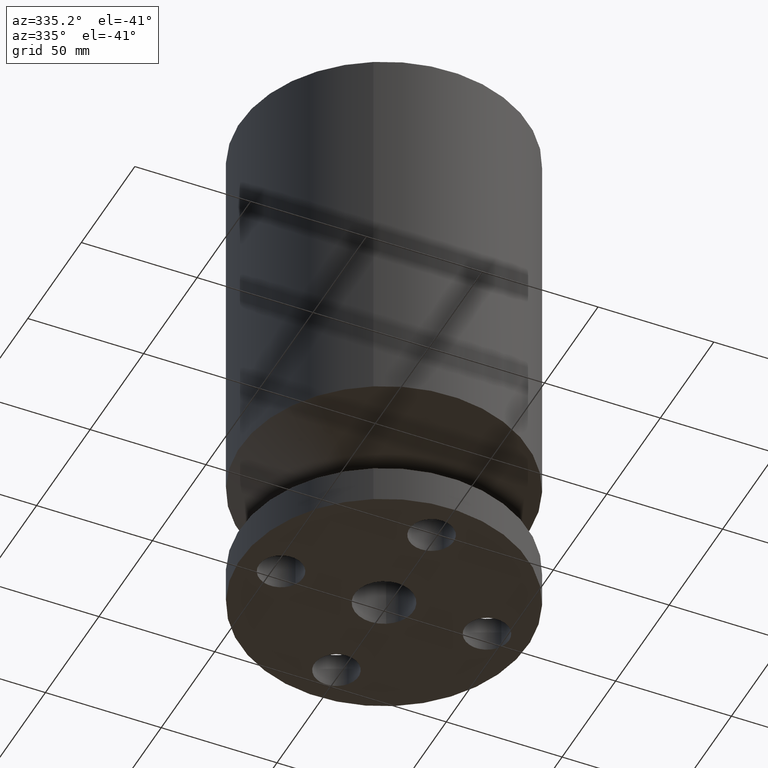
[diagram: clean part render]
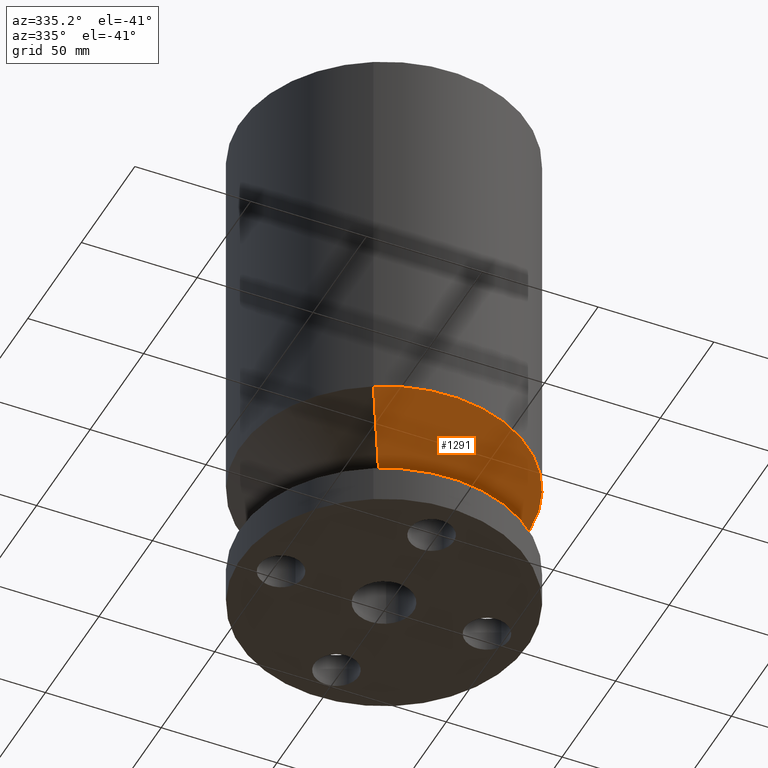
[diagram: same view with one face highlighted and labeled with its STEP entity id]
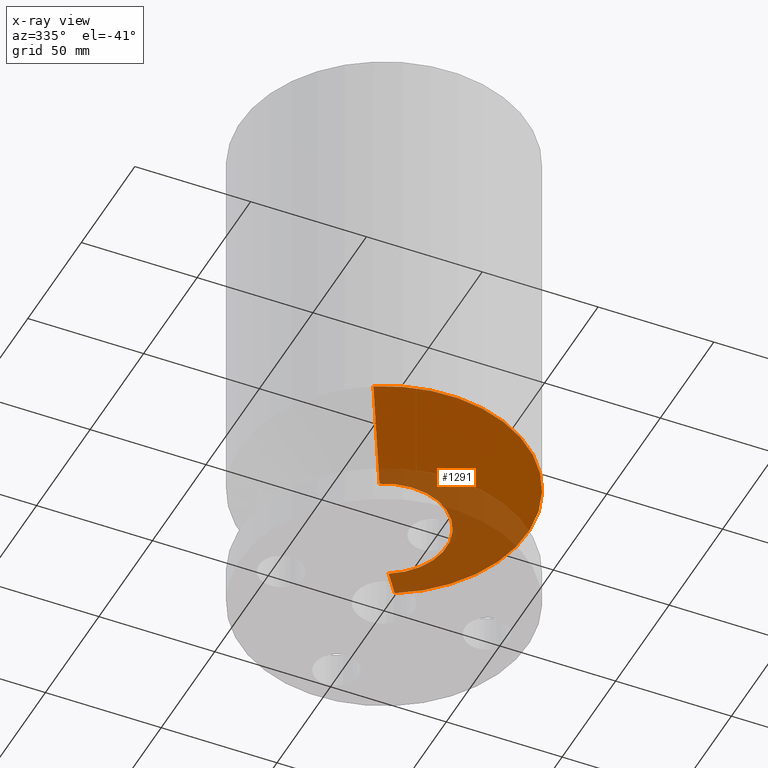
[diagram: x-ray of the same camera — body ghosted, the highlighted face saturated]
A machine part, auxiliary view. The second image highlights one B-rep face of the part: STEP entity #1291.
The next image is the same camera in x-ray: the body ghosted, the highlighted face saturated — about 38% of this face is hidden behind the body in this view.
In plain terms, the highlighted conical surface has half-angle 60 deg.
Its self-contained STEP definition (entity closure, byte-faithful):
#719=AXIS2_PLACEMENT_3D('Circle Axis2P3D',#717,#718,$) ;
#1264=AXIS2_PLACEMENT_3D('Cone Axis2P3D',#1261,#1262,#1263) ;
#1275=AXIS2_PLACEMENT_3D('Circle Axis2P3D',#1273,#1274,$) ;
#714=CARTESIAN_POINT('Vertex',(0.508191070922,0.930237515608,1.50750000001)) ;
#717=CARTESIAN_POINT('Axis2P3D Location',(0.,0.,1.50750000001)) ;
#721=CARTESIAN_POINT('Vertex',(-0.508191070922,-0.930237515608,1.50750000001)) ;
#1261=CARTESIAN_POINT('Axis2P3D Location',(0.,0.,1.50750000001)) ;
#1266=CARTESIAN_POINT('Line Origine',(0.838994692561,1.53576948331,1.90587168575)) ;
#1270=CARTESIAN_POINT('Vertex',(1.1697983142,2.14130145102,2.30424337149)) ;
#1273=CARTESIAN_POINT('Axis2P3D Location',(0.,0.,2.30424337149)) ;
#1277=CARTESIAN_POINT('Vertex',(-1.1697983142,-2.14130145102,2.30424337149)) ;
#1280=CARTESIAN_POINT('Line Origine',(-0.838994692561,-1.53576948331,1.90587168575)) ;
#718=DIRECTION('Axis2P3D Direction',(0.,0.,-0.0393700787402)) ;
#1262=DIRECTION('Axis2P3D Direction',(-0.,-0.,0.0393700787402)) ;
#1263=DIRECTION('Axis2P3D XDirection',(0.0188750212049,0.0345504945626,0.)) ;
#1267=DIRECTION('Vector Direction',(0.0163462478604,0.0299216060045,0.0196850393701)) ;
#1274=DIRECTION('Axis2P3D Direction',(-0.,0.,0.0393700787402)) ;
#1281=DIRECTION('Vector Direction',(-0.0163462478604,-0.0299216060045,0.0196850393701)) ;
#1268=VECTOR('Line Direction',#1267,0.0393700787402) ;
#1282=VECTOR('Line Direction',#1281,0.0393700787402) ;
#1286=ORIENTED_EDGE('',*,*,#723,.F.) ;
#1287=ORIENTED_EDGE('',*,*,#1272,.T.) ;
#1288=ORIENTED_EDGE('',*,*,#1279,.T.) ;
#1289=ORIENTED_EDGE('',*,*,#1284,.F.) ;
#1291=ADVANCED_FACE('PartBody',(#1290),#1265,.T.) ;
#720=CIRCLE('generated circle',#719,1.06) ;
#1276=CIRCLE('generated circle',#1275,2.44000000001) ;
#1265=CONICAL_SURFACE('Cone',#1264,1.06,1.0471975512) ;
#723=EDGE_CURVE('',#715,#722,#720,.T.) ;
#1272=EDGE_CURVE('',#715,#1271,#1269,.T.) ;
#1279=EDGE_CURVE('',#1271,#1278,#1276,.F.) ;
#1284=EDGE_CURVE('',#722,#1278,#1283,.T.) ;
#1285=EDGE_LOOP('',(#1286,#1287,#1288,#1289)) ;
#1290=FACE_OUTER_BOUND('',#1285,.T.) ;
#1269=LINE('Line',#1266,#1268) ;
#1283=LINE('Line',#1280,#1282) ;
#715=VERTEX_POINT('',#714) ;
#722=VERTEX_POINT('',#721) ;
#1271=VERTEX_POINT('',#1270) ;
#1278=VERTEX_POINT('',#1277) ;